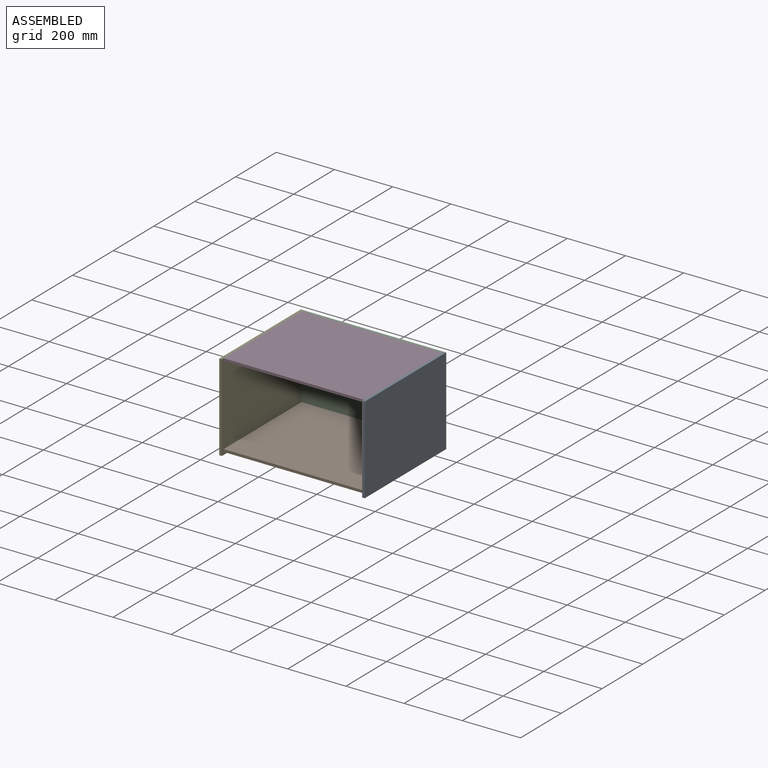
[diagram: assembled view]
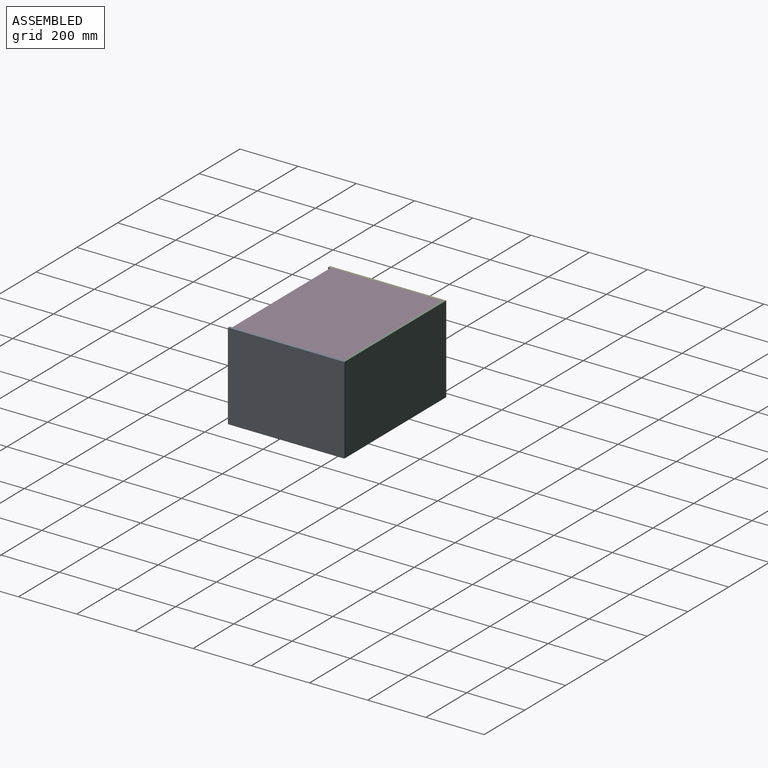
[diagram: assembled view, second angle]
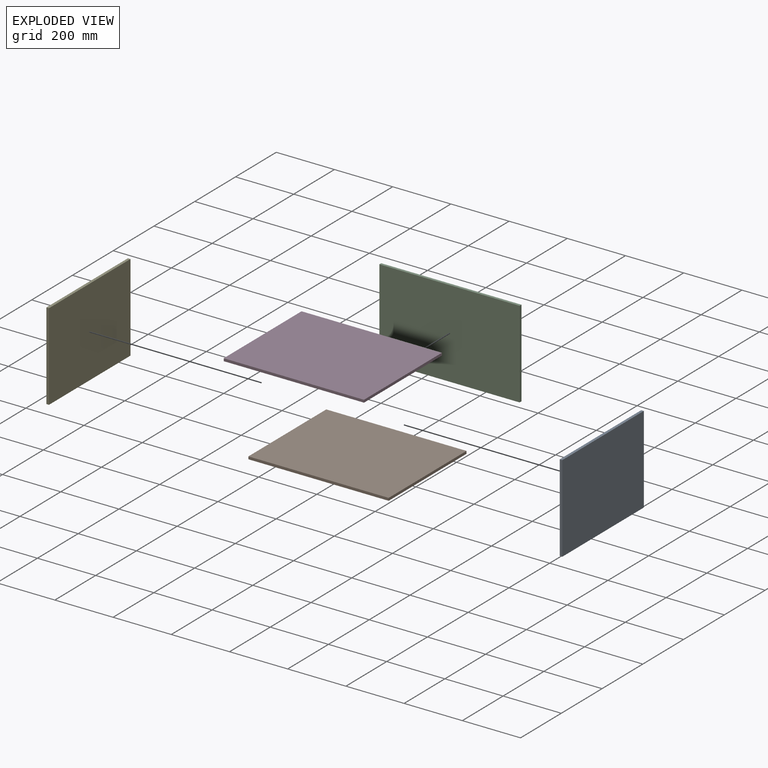
[diagram: exploded view]
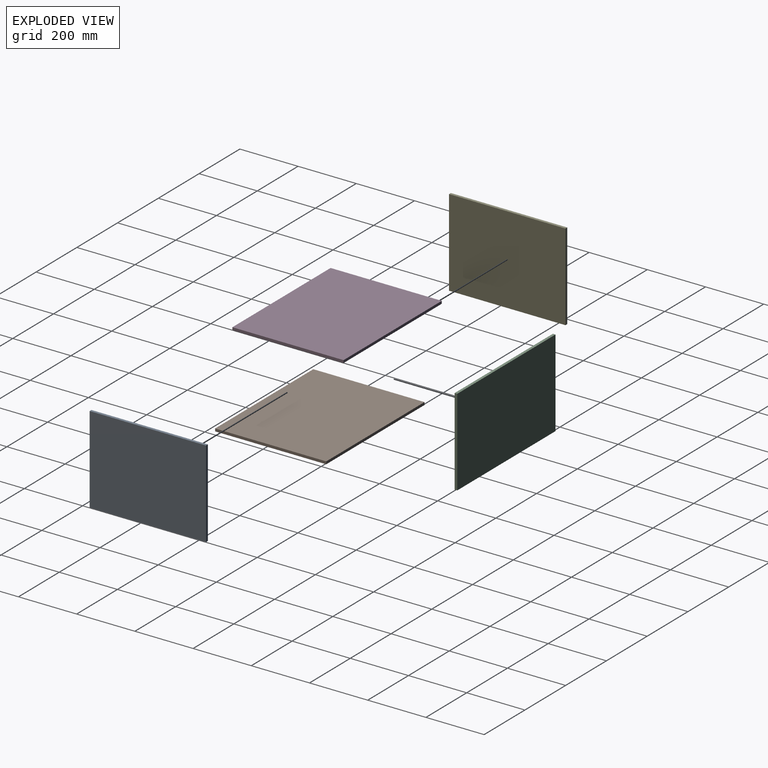
[diagram: exploded view, second angle]
ASSEMBLY  parts=5 mates=4
PART A: 6 faces, bbox 300x400x9 mm
  f0: plane 300x9mm, normal (0,-1,0), area 2700mm2, adj f1,f3,f4,f5
  f1: plane 400x9mm, normal (1,0,0), area 3600mm2, adj f0,f2,f4,f5
  f2: plane 300x9mm, normal (0,1,0), area 2700mm2, adj f1,f3,f4,f5
  f3: plane 400x9mm, normal (-1,0,0), area 3600mm2, adj f0,f2,f4,f5
  f4: plane 400x300mm, normal (0,0,1), area 120000mm2, adj f0,f1,f2,f3
  f5: plane 400x300mm, normal (0,0,-1), area 120000mm2, adj f0,f1,f2,f3
PART B: 6 faces, bbox 482x382x9 mm
  f0: plane 382x9mm, normal (-1,0,0), area 3438mm2, adj f1,f3,f4,f5
  f1: plane 482x9mm, normal (0,-1,0), area 4338mm2, adj f0,f2,f4,f5
  f2: plane 382x9mm, normal (1,0,0), area 3438mm2, adj f1,f3,f4,f5
  f3: plane 482x9mm, normal (0,1,0), area 4338mm2, adj f0,f2,f4,f5
  f4: plane 482x382mm, normal (0,0,1), area 184124mm2, adj f0,f1,f2,f3
  f5: plane 482x382mm, normal (0,0,-1), area 184124mm2, adj f0,f1,f2,f3
PART C: 6 faces, bbox 482x300x9 mm
  f0: plane 482x9mm, normal (0,1,0), area 4338mm2, adj f1,f3,f4,f5
  f1: plane 300x9mm, normal (-1,0,0), area 2700mm2, adj f0,f2,f4,f5
  f2: plane 482x9mm, normal (0,-1,0), area 4338mm2, adj f1,f3,f4,f5
  f3: plane 300x9mm, normal (1,0,0), area 2700mm2, adj f0,f2,f4,f5
  f4: plane 482x300mm, normal (0,0,1), area 144600mm2, adj f0,f1,f2,f3
  f5: plane 482x300mm, normal (0,0,-1), area 144600mm2, adj f0,f1,f2,f3
PART D: same geometry as B
PART E: same geometry as A
PLACE A rot(axis=(0,-1,0),90deg) t=(338.88,36.75,364.25)mm
PLACE B t=(-152.12,45.75,-126.75)mm
PLACE C rot(axis=(1,0,0),90deg) t=(-152.12,436.75,364.25)mm
PLACE D t=(-152.12,45.75,155.25)mm
PLACE E rot(axis=(0,1,0),90deg) t=(-161.12,36.75,-335.75)mm
MATE fastened B.f0 <-> E.f4  axis (-1,0,0) through (-152.12,236.75,-126.75)mm
MATE fastened A.f4 <-> C.f3  axis (-1,0,0) through (329.88,436.75,164.25)mm
MATE fastened D.f0 <-> E.f4  axis (-1,0,0) through (-152.12,236.75,164.25)mm
MATE fastened E.f4 <-> C.f1  axis (1,0,0) through (-152.12,436.75,-135.75)mm
